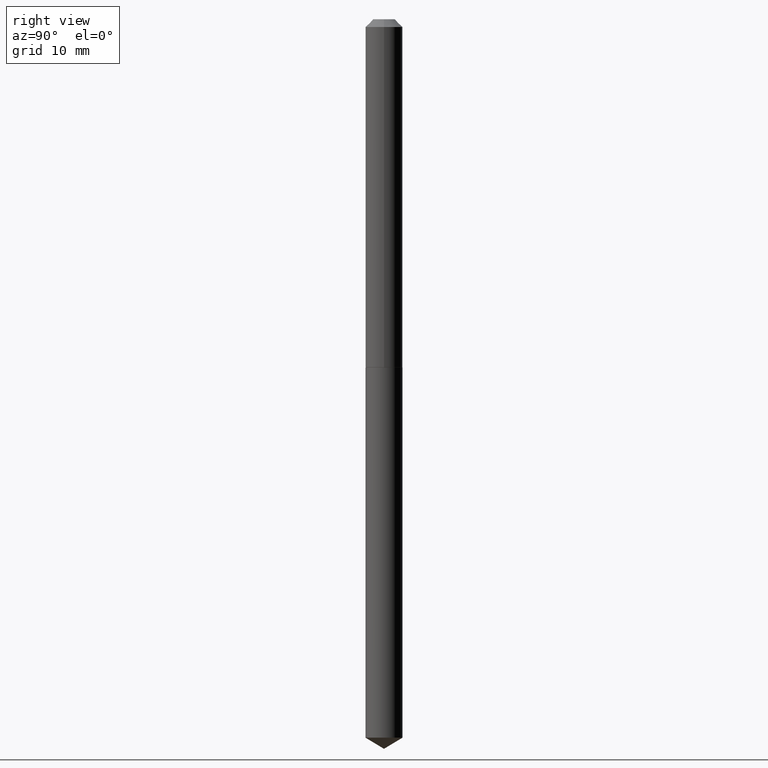
[diagram: clean part render]
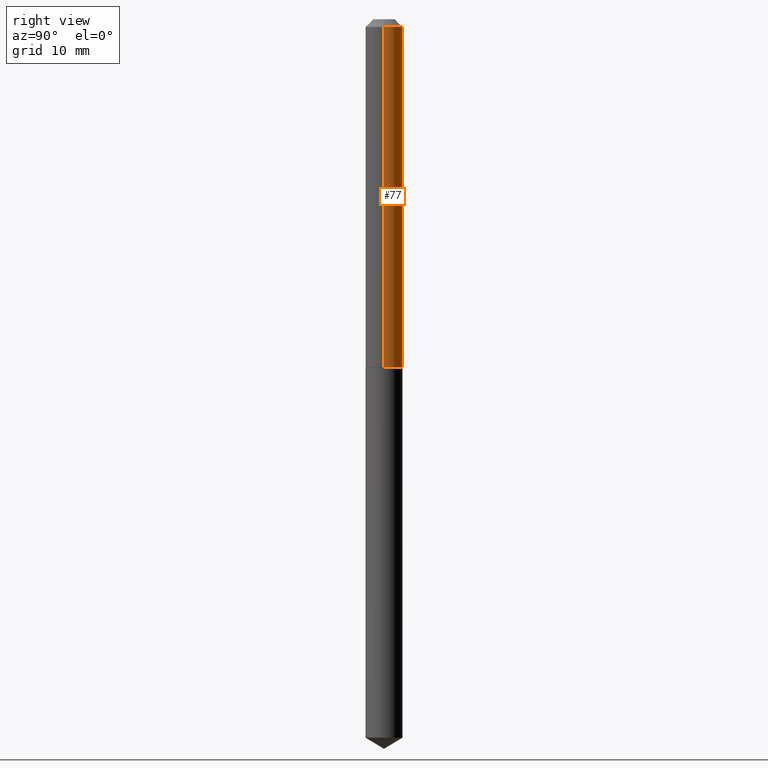
[diagram: same view with one face highlighted and labeled with its STEP entity id]
A machine part, right view. The second image highlights one B-rep face of the part: STEP entity #77.
In plain terms, the highlighted cylindrical surface (edge-blend (fillet) strip) has radius 1.8999 mm, axis along (-0, 0, 1).
Its self-contained STEP definition (entity closure, byte-faithful):
#26 = CARTESIAN_POINT ( 'NONE',  ( 0.07480000000000010252, -5.223256082909333921E-16, 3.647380228295364368E-30 ) ) ;
#43 = CIRCLE ( 'NONE', #317, 0.07480000000000018578 ) ;
#45 = EDGE_CURVE ( 'NONE', #303, #171, #43, .T. ) ;
#47 = VERTEX_POINT ( 'NONE', #235 ) ;
#51 = DIRECTION ( 'NONE',  ( -2.445468806185136877E-29, 3.491481338843145188E-15, 1.000000000000000000 ) ) ;
#52 = CARTESIAN_POINT ( 'NONE',  ( 0.07480000000000000537, -6.314344001297818025E-16, -0.03125000000000020123 ) ) ;
#62 = CIRCLE ( 'NONE', #306, 0.07480000000000000537 ) ;
#72 = DIRECTION ( 'NONE',  ( 1.000000000000000000, -6.982962677686265922E-15, 4.876176775795935232E-29 ) ) ;
#77 = ADVANCED_FACE ( 'NONE', ( #131 ), #363, .T. ) ;
#111 = EDGE_CURVE ( 'NONE', #171, #47, #234, .T. ) ;
#115 = ORIENTED_EDGE ( 'NONE', *, *, #45, .T. ) ;
#120 = EDGE_CURVE ( 'NONE', #246, #47, #62, .T. ) ;
#121 = VECTOR ( 'NONE', #51, 39.37007874015748143 ) ;
#125 = DIRECTION ( 'NONE',  ( -2.445468806185136597E-29, 3.491481338843145583E-15, 1.000000000000000000 ) ) ;
#131 = FACE_OUTER_BOUND ( 'NONE', #179, .T. ) ;
#133 = CARTESIAN_POINT ( 'NONE',  ( 0.000000000000000000, 0.000000000000000000, 0.000000000000000000 ) ) ;
#160 = CARTESIAN_POINT ( 'NONE',  ( 3.445665547914856505E-29, -4.919497206429991117E-15, -1.408999999999999586 ) ) ;
#171 = VERTEX_POINT ( 'NONE', #200 ) ;
#179 = EDGE_LOOP ( 'NONE', ( #115, #294, #386, #384 ) ) ;
#184 = VECTOR ( 'NONE', #191, 39.37007874015748143 ) ;
#189 = CARTESIAN_POINT ( 'NONE',  ( -0.07480000000000010252, 5.314859663485556675E-16, -3.679363447510674285E-30 ) ) ;
#191 = DIRECTION ( 'NONE',  ( -2.445468806185136877E-29, 3.491481338843145188E-15, 1.000000000000000000 ) ) ;
#198 = CARTESIAN_POINT ( 'NONE',  ( 7.642090019328601786E-31, -1.091087918388490144E-16, -0.03125000000000020123 ) ) ;
#200 = CARTESIAN_POINT ( 'NONE',  ( -0.07480000000000018578, -4.388011240081434759E-15, -1.408999999999999586 ) ) ;
#234 = LINE ( 'NONE', #189, #184 ) ;
#235 = CARTESIAN_POINT ( 'NONE',  ( -0.07480000000000000537, -1.982817032785863356E-15, -0.03125000000000020123 ) ) ;
#246 = VERTEX_POINT ( 'NONE', #52 ) ;
#273 = LINE ( 'NONE', #26, #121 ) ;
#294 = ORIENTED_EDGE ( 'NONE', *, *, #111, .T. ) ;
#303 = VERTEX_POINT ( 'NONE', #380 ) ;
#306 = AXIS2_PLACEMENT_3D ( 'NONE', #198, #125, #341 ) ;
#310 = DIRECTION ( 'NONE',  ( -2.445468806185136597E-29, 3.491481338843145583E-15, 1.000000000000000000 ) ) ;
#313 = EDGE_CURVE ( 'NONE', #303, #246, #273, .T. ) ;
#314 = DIRECTION ( 'NONE',  ( -2.445468806185136597E-29, 3.491481338843145583E-15, 1.000000000000000000 ) ) ;
#317 = AXIS2_PLACEMENT_3D ( 'NONE', #160, #314, #367 ) ;
#341 = DIRECTION ( 'NONE',  ( 1.000000000000000000, -6.982962677686266711E-15, 0.000000000000000000 ) ) ;
#363 = CYLINDRICAL_SURFACE ( 'NONE', #383, 0.07480000000000010252 ) ;
#367 = DIRECTION ( 'NONE',  ( 1.000000000000000000, -6.982962677686271444E-15, 0.000000000000000000 ) ) ;
#380 = CARTESIAN_POINT ( 'NONE',  ( 0.07480000000000018578, -5.441822814720925495E-15, -1.408999999999999586 ) ) ;
#383 = AXIS2_PLACEMENT_3D ( 'NONE', #133, #310, #72 ) ;
#384 = ORIENTED_EDGE ( 'NONE', *, *, #313, .F. ) ;
#386 = ORIENTED_EDGE ( 'NONE', *, *, #120, .F. ) ;